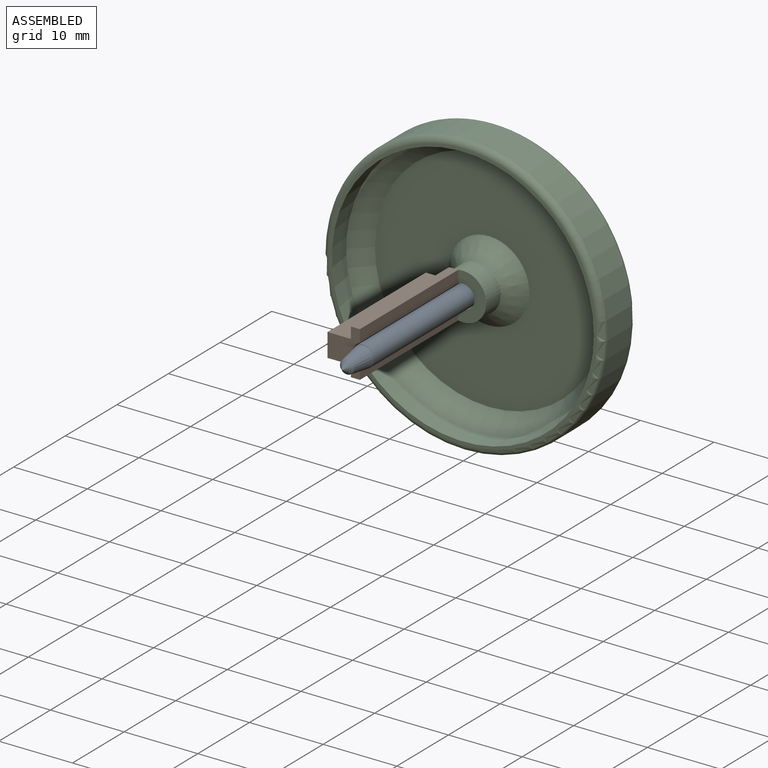
[diagram: assembled view]
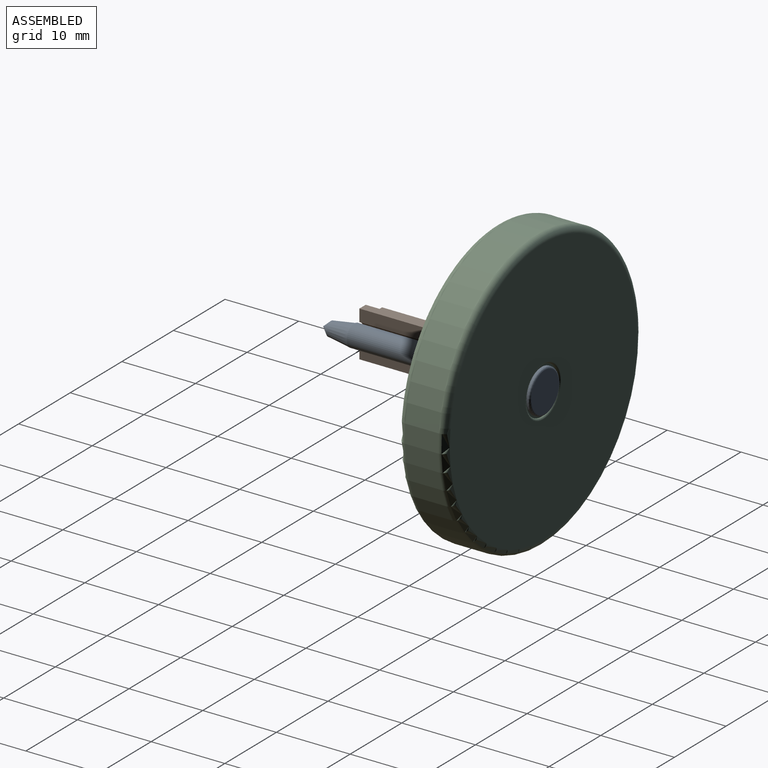
[diagram: assembled view, second angle]
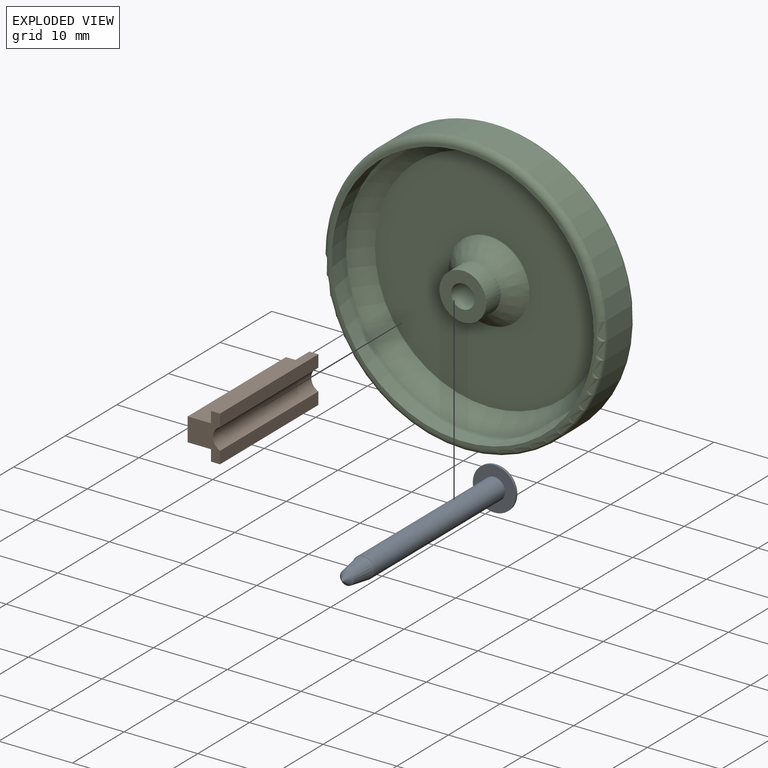
[diagram: exploded view]
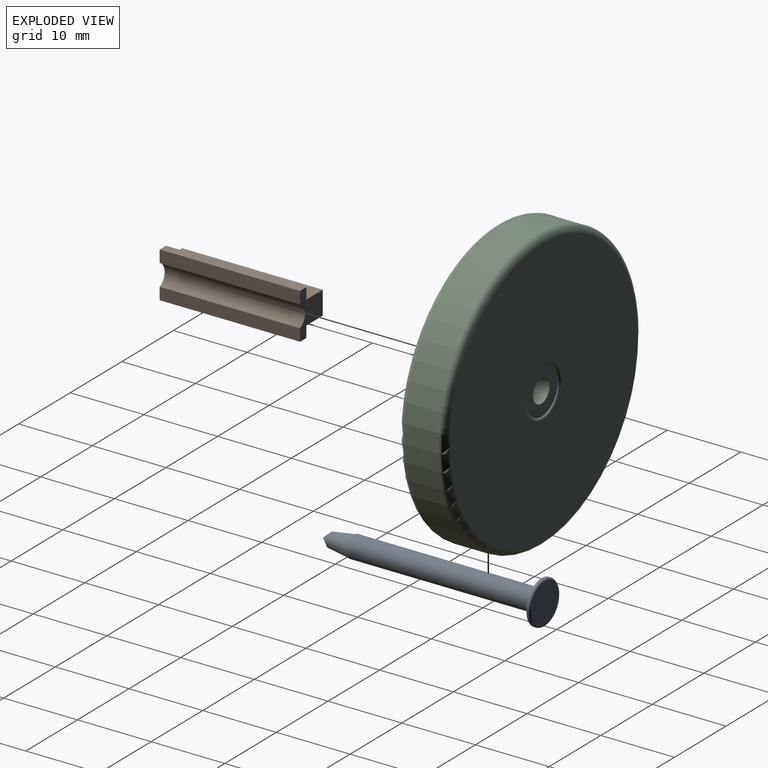
[diagram: exploded view, second angle]
ASSEMBLY  parts=3 mates=4
PART A: 8 faces, bbox 6.3x30.1x6.3 mm
  f0: cylinder r=1.46mm len=25.4mm, axis (0,1,0), area 233.1mm2, adj f1,f6
  f1: plane 2.92x2.92mm, normal (0,-1,0), area 0.3mm2, adj f0,f2
  f2: cone r=0.95mm half-angle=8.7deg, axis (0,1,0), area 24mm2, adj f1,f3
  f3: cone r=0mm half-angle=42.2deg, axis (0,1,0), area 4.2mm2, adj f2
  f4: cylinder r=2.92mm len=5.84mm, axis (0,-1,0), area 4.2mm2, adj f6,f7
  f5: plane 5.33x5.33mm, normal (0,1,0), area 22.3mm2, adj f7
  f6: plane 5.84x5.84mm, normal (0,-1,0), area 20.1mm2, adj f0,f4
  f7: torus R=2.67mm, axis (0,1,0), area 7.1mm2, adj f4,f5
PART B: 12 faces, bbox 4.4x19.1x6.2 mm
  f0: plane 19.05x1.52mm, normal (-1,0,0), area 29mm2, adj f1,f9,f10,f11
  f1: plane 19.05x3.18mm, normal (0,0,1), area 60.5mm2, adj f0,f2,f10,f11
  f2: plane 19.05x3.18mm, normal (-1,0,0), area 60.5mm2, adj f1,f3,f10,f11
  f3: plane 19.05x3.18mm, normal (0,0,-1), area 60.5mm2, adj f2,f4,f10,f11
  f4: plane 19.05x1.52mm, normal (-1,0,0), area 29mm2, adj f3,f5,f10,f11
  f5: plane 19.05x1.22mm, normal (0,0,-1), area 23.2mm2, adj f4,f6,f10,f11
  f6: plane 19.05x1.65mm, normal (1,0,0), area 31.5mm2, adj f5,f7,f10,f11
  f7: cylinder r=1.59mm len=19.05mm, axis (0,1,0), area 70.4mm2, adj f6,f8,f10,f11
  f8: plane 19.05x1.65mm, normal (1,0,0), area 31.5mm2, adj f7,f9,f10,f11
  f9: plane 19.05x1.22mm, normal (0,0,1), area 23.2mm2, adj f0,f8,f10,f11
  f10: plane 6.22x4.39mm, normal (0,-1,0), area 15.7mm2, adj f0,f1,f2,f3,f4,f5,f6,f7
  f11: plane 6.22x4.39mm, normal (0,1,0), area 15.7mm2, adj f0,f1,f2,f3,f4,f5,f6,f7
PART C: 18 faces, bbox 41.2x6.4x41.2 mm
  f0: cylinder r=1.59mm len=6.1mm, axis (0,-1,0), area 60.8mm2, adj f7,f8
  f1: cylinder r=19.05mm len=38.1mm, axis (0,1,0), area 547.2mm2, adj f10,f11
  f2: plane 36.32x36.32mm, normal (0,-1,0), area 43mm2, adj f5,f11
  f3: plane 36.32x36.32mm, normal (0,1,0), area 999.2mm2, adj f9,f10
  f4: cylinder r=3.17mm len=6.35mm, axis (0,-1,0), area 54.7mm2, adj f7,f17
  f5: cylinder r=17.78mm len=35.56mm, axis (0,-1,0), area 306.3mm2, adj f2,f14
  f6: plane 30.88x30.88mm, normal (0,-1,0), area 653.6mm2, adj f15,f16
  f7: plane 6.35x6.35mm, normal (0,-1,0), area 23.8mm2, adj f0,f4
  f8: plane 6.35x6.35mm, normal (0,1,0), area 23.8mm2, adj f0,f9
  f9: torus R=3.43mm, axis (0,-1,0), area 8.2mm2, adj f3,f8
  f10: torus R=18.16mm, axis (0,-1,0), area 164.3mm2, adj f1,f3
  f11: torus R=18.16mm, axis (0,-1,0), area 164.3mm2, adj f1,f2
  f12: cone r=3.17mm half-angle=45deg, axis (0,1,0), area 84.9mm2, adj f15,f17
  f13: cone r=15.49mm half-angle=45deg, axis (0,-1,0), area 326.9mm2, adj f14,f16
  f14: torus R=17.65mm, axis (0,1,0), area 11.1mm2, adj f5,f13
  f15: torus R=5.51mm, axis (0,-1,0), area 3.4mm2, adj f6,f12
  f16: torus R=15.44mm, axis (0,-1,0), area 9.7mm2, adj f6,f13
  f17: torus R=3.3mm, axis (0,-1,0), area 2mm2, adj f4,f12
PLACE A rot(axis=(0,1,0),36.2deg) t=(-38.73,-30.54,1.23)mm
PLACE B t=(-38.85,-30.54,0.86)mm fixed
PLACE C t=(-38.85,-30.54,0.86)mm
MATE planar C.f0 <-> B.f11  axis (0,-1,0) through (-38.23,-36.89,0.86)mm
MATE cylindrical A.f0 <-> C.f0  axis (0,1,0) through (-38.23,-30.8,0.86)mm
MATE planar A.f0 <-> C.f0  axis (0,1,0) through (-38.23,-30.8,0.86)mm
MATE cylindrical B.f7 <-> A.f0  axis (0,1,0) through (-38.23,-36.89,0.86)mm
